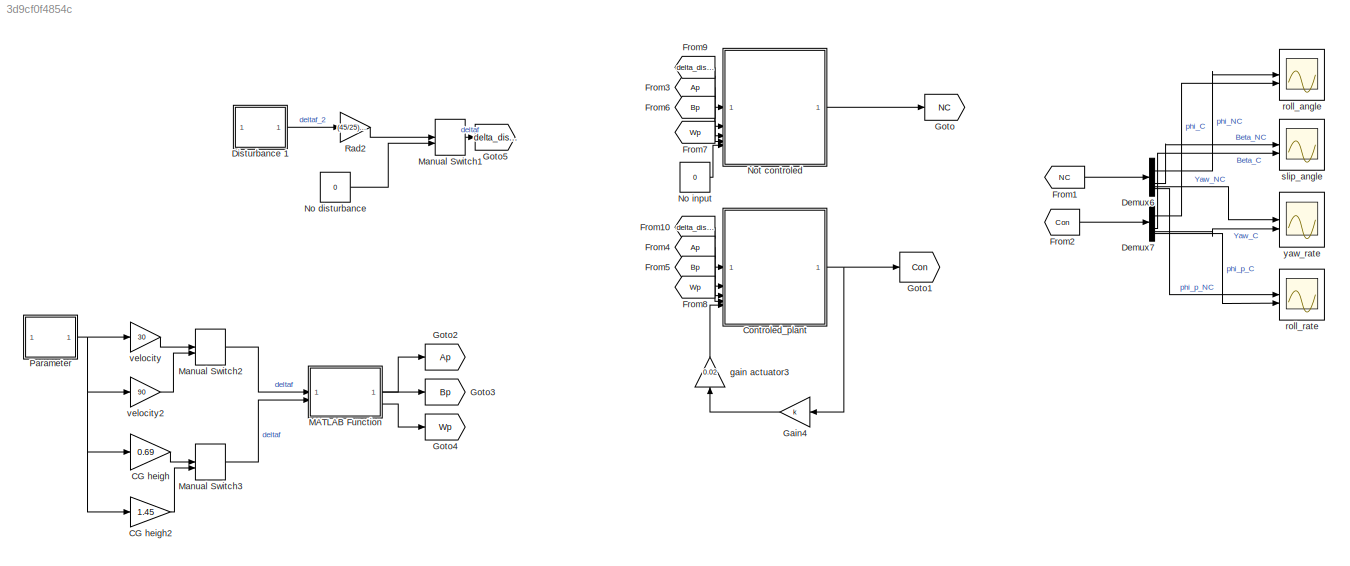
MODEL slx_3d9cf0f4854c
KIND model
CONFIG AbsTol = auto
CONFIG EnableMultiTasking = off
CONFIG FixedStep = auto
CONFIG MaxStep = auto
CONFIG MinStep = auto
CONFIG RelTol = 1e-3
CONFIG SampleTimeConstraint = Unconstrained
CONFIG SolverName = VariableStepAuto
CONFIG StartTime = 0.0
CONFIG StopTime = 6
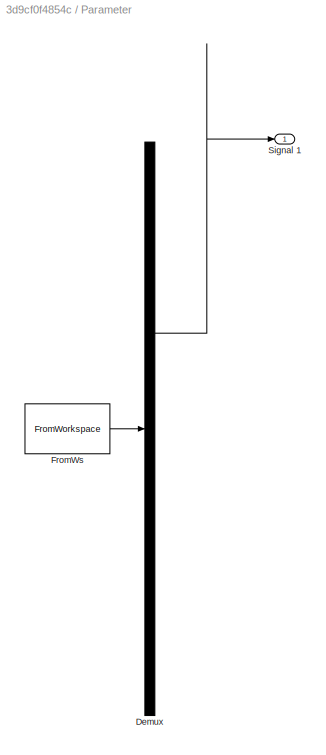
BLOCK [SubSystem]  Parameter
  ClipboardFcn = sigbuilder_block('clipboard');
  CloseFcn = sigbuilder_block('close');
  ContinueFcn = sigbuilder_block('continue');
  CopyFcn = sigbuilder_block('copy');
  DeleteFcn = sigbuilder_block('delete');
  LoadFcn = sigbuilder_block('load');
  MaskHideContents = on
  ModelCloseFcn = sigbuilder_block('modelClose');
  NameChangeFcn = sigbuilder_block('namechange');
  OpenFcn = sigbuilder_block('open',[265.8 141.6 550.8 400.2 ]);
  PauseFcn = sigbuilder_block('pause');
  PreSaveFcn = sigbuilder_block('preSave');
  StartFcn = sigbuilder_block('start');
  StopFcn = sigbuilder_block('stop');
  Tag = STV Subsys
BLOCK [Demux]  Parameter/Demux
  DisplayOption = none
  Outputs = 1
  Tag = STV Demux
BLOCK [FromWorkspace]  Parameter/FromWs
  Tag = STV FromWs
  VariableName = tuvar
BLOCK [Outport]  Parameter/Signal 1
  Tag = STV Outport
BLOCK [Gain] CG heigh
  Gain = 0.69
BLOCK [Gain] CG heigh2
  Gain = 1.45
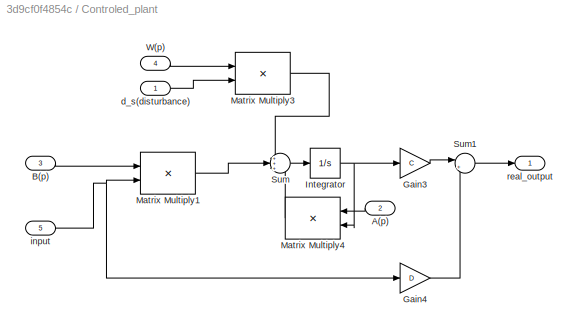
BLOCK [SubSystem] Controled_plant
BLOCK [Inport] Controled_plant/A(p)
  Port = 2
BLOCK [Inport] Controled_plant/B(p)
  Port = 3
BLOCK [Gain] Controled_plant/Gain3
  Gain = C
  Multiplication = Matrix(K*u)
BLOCK [Gain] Controled_plant/Gain4
  Gain = D
  Multiplication = Matrix(K*u)
BLOCK [Integrator] Controled_plant/Integrator
  InitialCondition = [0, 0, 0, 0]
BLOCK [Product] Controled_plant/Matrix Multiply1
  Multiplication = Matrix(*)
BLOCK [Product] Controled_plant/Matrix Multiply3
  Multiplication = Matrix(*)
BLOCK [Product] Controled_plant/Matrix Multiply4
  Multiplication = Matrix(*)
BLOCK [Sum] Controled_plant/Sum
  Inputs = +++
BLOCK [Sum] Controled_plant/Sum1
  Inputs = |++
BLOCK [Inport] Controled_plant/W(p)
  Port = 4
BLOCK [Inport] Controled_plant/d_s(disturbance)
BLOCK [Inport] Controled_plant/input
  Port = 5
BLOCK [Outport] Controled_plant/real_output
BLOCK [Demux] Demux6
BLOCK [Demux] Demux7
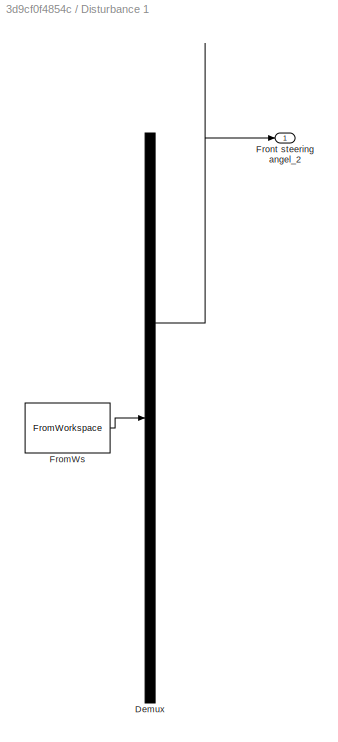
BLOCK [SubSystem] Disturbance 1
  ClipboardFcn = sigbuilder_block('clipboard');
  CloseFcn = sigbuilder_block('close');
  ContinueFcn = sigbuilder_block('continue');
  CopyFcn = sigbuilder_block('copy');
  DeleteFcn = sigbuilder_block('delete');
  LoadFcn = sigbuilder_block('load');
  MaskHideContents = on
  ModelCloseFcn = sigbuilder_block('modelClose');
  NameChangeFcn = sigbuilder_block('namechange');
  OpenFcn = sigbuilder_block('open',[265.8 141.6 550.8 400.2 ]);
  PauseFcn = sigbuilder_block('pause');
  PreSaveFcn = sigbuilder_block('preSave');
  StartFcn = sigbuilder_block('start');
  StopFcn = sigbuilder_block('stop');
  Tag = STV Subsys
BLOCK [Demux] Disturbance 1/Demux
  DisplayOption = none
  Outputs = 1
  Tag = STV Demux
BLOCK [FromWorkspace] Disturbance 1/FromWs
  Tag = STV FromWs
  VariableName = tuvar
BLOCK [Outport] Disturbance 1/Front steering angel_2
  Tag = STV Outport
BLOCK [From] From1
  GotoTag = NC
BLOCK [From] From10
  GotoTag = delta_disturbance
BLOCK [From] From2
  GotoTag = Con
BLOCK [From] From3
  GotoTag = Ap
BLOCK [From] From4
  GotoTag = Ap
BLOCK [From] From5
  GotoTag = Bp
BLOCK [From] From6
  GotoTag = Bp
BLOCK [From] From7
  GotoTag = Wp
BLOCK [From] From8
  GotoTag = Wp
BLOCK [From] From9
  GotoTag = delta_disturbance
BLOCK [Gain] Gain4
  Gain = k
  Multiplication = Matrix(K*u)
  NameLocation = top
BLOCK [Goto] Goto
  GotoTag = NC
BLOCK [Goto] Goto1
  GotoTag = Con
BLOCK [Goto] Goto2
  GotoTag = Ap
BLOCK [Goto] Goto3
  GotoTag = Bp
BLOCK [Goto] Goto4
  GotoTag = Wp
BLOCK [Goto] Goto5
  GotoTag = delta_disturbance
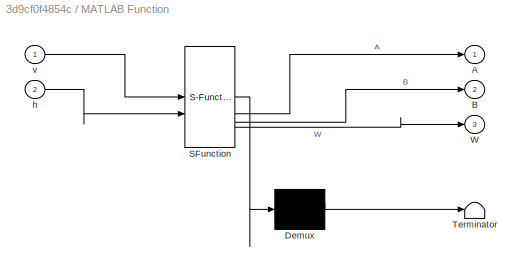
BLOCK [SubSystem] MATLAB Function
  ErrorFcn = Stateflow.Translate.translate
  LibrarySourceBlock = simulink/User-Defined\nFunctions/MATLAB Function
  PermitHierarchicalResolution = ExplicitOnly
  SFBlockType = MATLAB Function
  TreatAsAtomicUnit = on
BLOCK [Demux] MATLAB Function/ Demux 
  Outputs = 1
BLOCK [S-Function] MATLAB Function/ SFunction 
  EnableBusSupport = on
  FunctionName = sf_sfun
  PortCounts = [2 4]
  SFcnIsStateOwnerBlock = off
  SFunctionDeploymentMode = off
  Tag = Stateflow S-Function 2
BLOCK [Terminator] MATLAB Function/ Terminator 
BLOCK [Outport] MATLAB Function/A
BLOCK [Outport] MATLAB Function/B
  Port = 2
BLOCK [Outport] MATLAB Function/W
  Port = 3
BLOCK [Inport] MATLAB Function/h
  Port = 2
BLOCK [Inport] MATLAB Function/v
BLOCK [ManualSwitch] Manual Switch1
BLOCK [ManualSwitch] Manual Switch2
BLOCK [ManualSwitch] Manual Switch3
  CurrentSetting = 0
BLOCK [Constant] No disturbance
  Value = 0
BLOCK [Constant] No input
  Value = 0
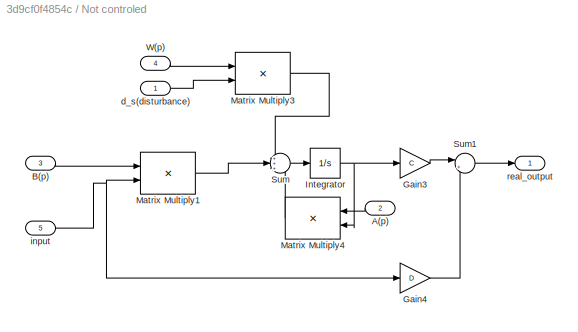
BLOCK [SubSystem] Not controled
BLOCK [Inport] Not controled/A(p)
  Port = 2
BLOCK [Inport] Not controled/B(p)
  Port = 3
BLOCK [Gain] Not controled/Gain3
  Gain = C
  Multiplication = Matrix(K*u)
BLOCK [Gain] Not controled/Gain4
  Gain = D
  Multiplication = Matrix(K*u)
BLOCK [Integrator] Not controled/Integrator
  InitialCondition = [0, 0, 0, 0]
BLOCK [Product] Not controled/Matrix Multiply1
  Multiplication = Matrix(*)
BLOCK [Product] Not controled/Matrix Multiply3
  Multiplication = Matrix(*)
BLOCK [Product] Not controled/Matrix Multiply4
  Multiplication = Matrix(*)
BLOCK [Sum] Not controled/Sum
  Inputs = +++
BLOCK [Sum] Not controled/Sum1
  Inputs = |++
BLOCK [Inport] Not controled/W(p)
  Port = 4
BLOCK [Inport] Not controled/d_s(disturbance)
BLOCK [Inport] Not controled/input
  Port = 5
BLOCK [Outport] Not controled/real_output
BLOCK [Gain] Rad2
  Gain = (45/25)*(pi/180)
BLOCK [Gain] gain actuator3
  Gain = 0.02
  NameLocation = left
BLOCK [Scope] roll_angle
  Floating = off
  NumInputPorts = 2
  ScopeSpecificationString = Simulink.scopes.TimeScopeBlockCfg('CurrentConfiguration', extmgr.ConfigurationSet(extmgr.Configuration('Core','General UI',true,'FigureColor',[1 1 1]),extmgr.Configuration('Core','Source UI',true),extmgr.Configuration('Sources','WiredSimulink',true,'DataLoggingVariableName','ScopeData1'),extmgr.Configuration('Visuals','Time Domain',true,'SerializedDisplays',{struct('MinYLimReal','-0.00851','MaxYLi...<+1811ch>
BLOCK [Scope] roll_rate
  Floating = off
  NumInputPorts = 2
  ScopeSpecificationString = Simulink.scopes.TimeScopeBlockCfg('CurrentConfiguration', extmgr.ConfigurationSet(extmgr.Configuration('Core','General UI',true,'FigureColor',[1 1 1]),extmgr.Configuration('Core','Source UI',true),extmgr.Configuration('Sources','WiredSimulink',true,'DataLoggingVariableName','ScopeData2'),extmgr.Configuration('Visuals','Time Domain',true,'SerializedDisplays',{struct('MinYLimReal','-0.04463','MaxYLi...<+1812ch>
BLOCK [Scope] slip_angle
  Floating = off
  NumInputPorts = 2
  ScopeSpecificationString = Simulink.scopes.TimeScopeBlockCfg('CurrentConfiguration', extmgr.ConfigurationSet(extmgr.Configuration('Core','General UI',true,'FigureColor',[1 1 1]),extmgr.Configuration('Core','Source UI',true),extmgr.Configuration('Sources','WiredSimulink',true,'DataLoggingVariableName','ScopeData3'),extmgr.Configuration('Visuals','Time Domain',true,'SerializedDisplays',{struct('MinYLimReal','-0.49271','MaxYLi...<+1793ch>
BLOCK [Gain] velocity
  Gain = 30
BLOCK [Gain] velocity2
  Gain = 90
BLOCK [Scope] yaw_rate
  Floating = off
  NumInputPorts = 2
  ScopeSpecificationString = Simulink.scopes.TimeScopeBlockCfg('CurrentConfiguration', extmgr.ConfigurationSet(extmgr.Configuration('Core','General UI',true,'FigureColor',[1 1 1]),extmgr.Configuration('Core','Source UI',true),extmgr.Configuration('Sources','WiredSimulink',true),extmgr.Configuration('Visuals','Time Domain',true,'SerializedDisplays',{struct('MinYLimReal','-0.07316','MaxYLimReal','0.06261','YLabelReal','','MinYL...<+1741ch>
NET  Parameter:1 -> CG heigh2:1, CG heigh:1, velocity2:1, velocity:1
LINE CG heigh2:1 -> Manual Switch3:2
LINE CG heigh:1 -> Manual Switch3:1
LINE Controled_plant/A(p):1 -> Controled_plant/Matrix Multiply4:1
LINE Controled_plant/B(p):1 -> Controled_plant/Matrix Multiply1:1
LINE Controled_plant/Gain3:1 -> Controled_plant/Sum1:1
LINE Controled_plant/Gain4:1 -> Controled_plant/Sum1:2
NET Controled_plant/Integrator:1 -> Controled_plant/Gain3:1, Controled_plant/Matrix Multiply4:2
LINE Controled_plant/Matrix Multiply1:1 -> Controled_plant/Sum:2
LINE Controled_plant/Matrix Multiply3:1 -> Controled_plant/Sum:1
LINE Controled_plant/Matrix Multiply4:1 -> Controled_plant/Sum:3
LINE Controled_plant/Sum1:1 -> Controled_plant/real_output:1
LINE Controled_plant/Sum:1 -> Controled_plant/Integrator:1
LINE Controled_plant/W(p):1 -> Controled_plant/Matrix Multiply3:1
LINE Controled_plant/d_s(disturbance):1 -> Controled_plant/Matrix Multiply3:2
NET Controled_plant/input:1 -> Controled_plant/Gain4:1, Controled_plant/Matrix Multiply1:2
NET Controled_plant:1 -> Gain4:1, Goto1:1
LINE Demux6:1 -> roll_angle:1
LINE Demux6:2 -> slip_angle:1
LINE Demux6:3 -> yaw_rate:1
LINE Demux6:4 -> roll_rate:1
LINE Demux7:1 -> roll_angle:2
LINE Demux7:2 -> slip_angle:2
LINE Demux7:3 -> yaw_rate:2
LINE Demux7:4 -> roll_rate:2
LINE Disturbance 1:1 -> Rad2:1
LINE From10:1 -> Controled_plant:1
LINE From1:1 -> Demux6:1
LINE From2:1 -> Demux7:1
LINE From3:1 -> Not controled:2
LINE From4:1 -> Controled_plant:2
LINE From5:1 -> Controled_plant:3
LINE From6:1 -> Not controled:3
LINE From7:1 -> Not controled:4
LINE From8:1 -> Controled_plant:4
LINE From9:1 -> Not controled:1
LINE Gain4:1 -> gain actuator3:1
LINE MATLAB Function:1 -> Goto2:1
LINE MATLAB Function:2 -> Goto3:1
LINE MATLAB Function:3 -> Goto4:1
LINE Manual Switch1:1 -> Goto5:1
LINE Manual Switch2:1 -> MATLAB Function:1
LINE Manual Switch3:1 -> MATLAB Function:2
LINE No disturbance:1 -> Manual Switch1:2
LINE No input:1 -> Not controled:5
LINE Not controled/A(p):1 -> Not controled/Matrix Multiply4:1
LINE Not controled/B(p):1 -> Not controled/Matrix Multiply1:1
LINE Not controled/Gain3:1 -> Not controled/Sum1:1
LINE Not controled/Gain4:1 -> Not controled/Sum1:2
NET Not controled/Integrator:1 -> Not controled/Gain3:1, Not controled/Matrix Multiply4:2
LINE Not controled/Matrix Multiply1:1 -> Not controled/Sum:2
LINE Not controled/Matrix Multiply3:1 -> Not controled/Sum:1
LINE Not controled/Matrix Multiply4:1 -> Not controled/Sum:3
LINE Not controled/Sum1:1 -> Not controled/real_output:1
LINE Not controled/Sum:1 -> Not controled/Integrator:1
LINE Not controled/W(p):1 -> Not controled/Matrix Multiply3:1
LINE Not controled/d_s(disturbance):1 -> Not controled/Matrix Multiply3:2
NET Not controled/input:1 -> Not controled/Gain4:1, Not controled/Matrix Multiply1:2
LINE Not controled:1 -> Goto:1
LINE Rad2:1 -> Manual Switch1:1
LINE gain actuator3:1 -> Controled_plant:5
LINE velocity2:1 -> Manual Switch2:2
LINE velocity:1 -> Manual Switch2:1
note: NET lines group one-source signal fan-out (src -> all destinations, sorted); 1:1 wires keep LINE
CHART MATLAB Function states=1 transitions=1
  STATE_LABEL 'eML_blk_kernel()'
  STATE_LABEL 'SCRIPT:\nfunction  [A,B,W]  = robust(v,h)\n%% Data...................................................................\nm=14300;\nm2=12487;\ncf=582000;\ncr=783000;\nmu=1;\nlf=1.95;\nlr=1.54;\nJz=34917;\nJ2x=24201;\ng=9.81;\ndfip=100000;\ncfi=457000;\nT=1.99;\nhr=0.68;\nIfi=J2x+(m2*(h^2));%\nYb=(cf+cr)*mu;%\nNb=((cf*lf)+(cr*lr))*mu;%\nNr=((cf*(lf^2))+(cr*(lr^2)))*mu;%\nsigma=(m2*g*h)-cfi;%\n\n%% Matrici del sistema\n\n\n%% ....<+332ch>'
CHART  states=0 transitions=0
